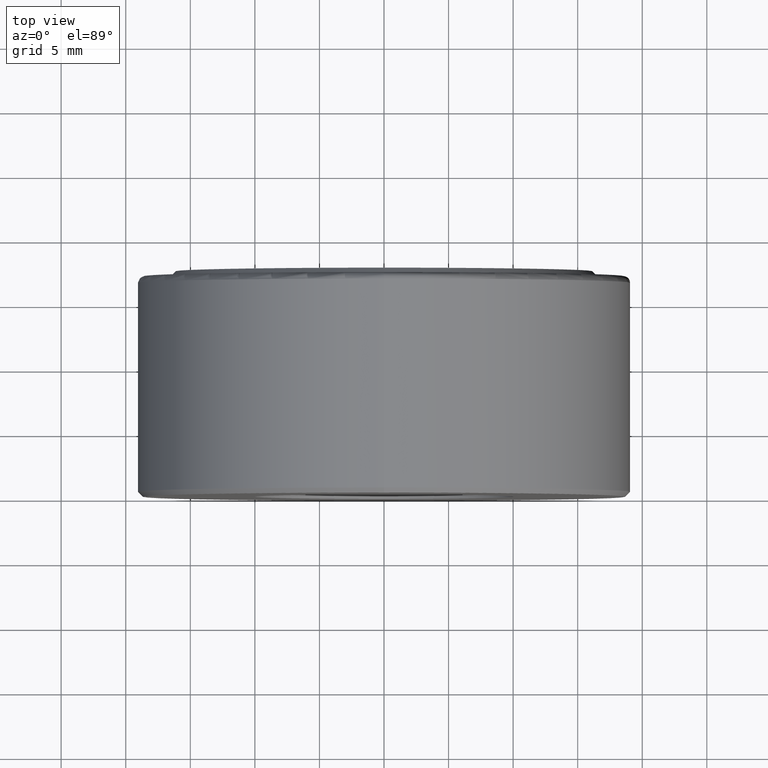
[diagram: clean part render]
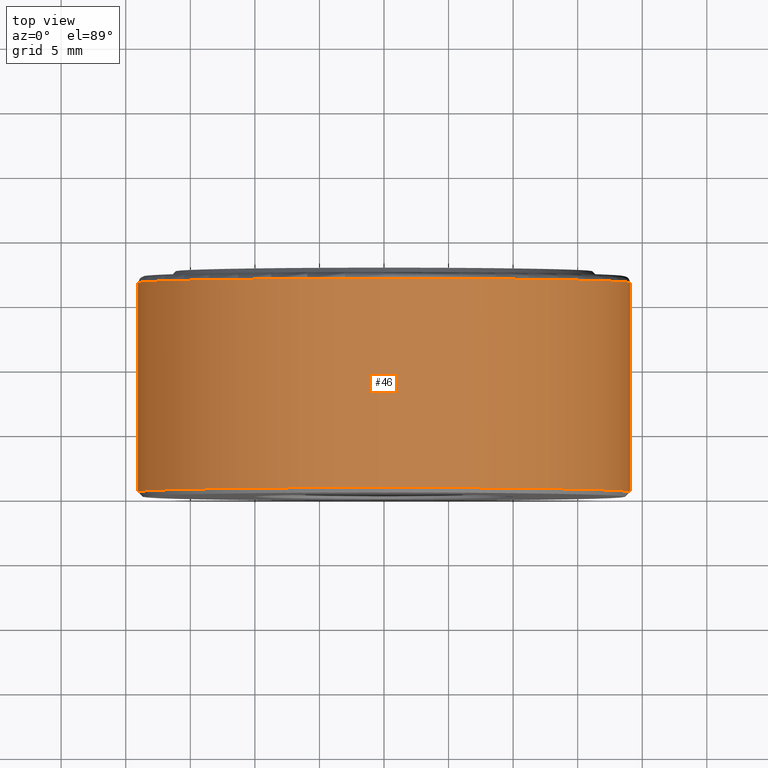
[diagram: same view with one face highlighted and labeled with its STEP entity id]
A machine part, top view. The second image highlights one B-rep face of the part: STEP entity #46.
In plain terms, the highlighted cylindrical surface (bore or boss wall) has radius 19.05 mm, axis along (-0, 1, -0).
Its self-contained STEP definition (entity closure, byte-faithful):
#11 = FACE_OUTER_BOUND ( 'NONE', #108, .T. ) ;
#13 = CARTESIAN_POINT ( 'NONE',  ( 0.0000000000000000000, 0.6524999999999997500, 0.0000000000000000000 ) ) ;
#46 = ADVANCED_FACE ( 'NONE', ( #11, #155 ), #443, .T. ) ;
#56 = DIRECTION ( 'NONE',  ( -0.0000000000000000000, 1.000000000000000000, -0.0000000000000000000 ) ) ;
#59 = CARTESIAN_POINT ( 'NONE',  ( 0.0000000000000000000, 0.01499999999999997700, 0.0000000000000000000 ) ) ;
#64 = EDGE_LOOP ( 'NONE', ( #254 ) ) ;
#73 = CARTESIAN_POINT ( 'NONE',  ( 0.0000000000000000000, 0.01499999999999997700, 0.7499999999999998900 ) ) ;
#90 = CARTESIAN_POINT ( 'NONE',  ( 0.0000000000000000000, 0.0000000000000000000, 0.0000000000000000000 ) ) ;
#108 = EDGE_LOOP ( 'NONE', ( #396 ) ) ;
#127 = DIRECTION ( 'NONE',  ( -0.0000000000000000000, 1.000000000000000000, -0.0000000000000000000 ) ) ;
#155 = FACE_OUTER_BOUND ( 'NONE', #64, .T. ) ;
#178 = VERTEX_POINT ( 'NONE', #73 ) ;
#208 = CARTESIAN_POINT ( 'NONE',  ( 0.0000000000000000000, 0.6524999999999997500, 0.7500000000000001100 ) ) ;
#254 = ORIENTED_EDGE ( 'NONE', *, *, #273, .T. ) ;
#270 = AXIS2_PLACEMENT_3D ( 'NONE', #13, #485, #324 ) ;
#273 = EDGE_CURVE ( 'NONE', #178, #178, #589, .T. ) ;
#281 = AXIS2_PLACEMENT_3D ( 'NONE', #90, #127, #502 ) ;
#324 = DIRECTION ( 'NONE',  ( 0.0000000000000000000, 0.0000000000000000000, 1.000000000000000000 ) ) ;
#380 = DIRECTION ( 'NONE',  ( 0.0000000000000000000, 0.0000000000000000000, 1.000000000000000000 ) ) ;
#389 = VERTEX_POINT ( 'NONE', #208 ) ;
#396 = ORIENTED_EDGE ( 'NONE', *, *, #401, .F. ) ;
#401 = EDGE_CURVE ( 'NONE', #389, #389, #517, .T. ) ;
#443 = CYLINDRICAL_SURFACE ( 'NONE', #281, 0.7499999999999998900 ) ;
#485 = DIRECTION ( 'NONE',  ( -0.0000000000000000000, 1.000000000000000000, -0.0000000000000000000 ) ) ;
#502 = DIRECTION ( 'NONE',  ( 0.0000000000000000000, 0.0000000000000000000, 1.000000000000000000 ) ) ;
#517 = CIRCLE ( 'NONE', #270, 0.7500000000000001100 ) ;
#563 = AXIS2_PLACEMENT_3D ( 'NONE', #59, #56, #380 ) ;
#589 = CIRCLE ( 'NONE', #563, 0.7499999999999998900 ) ;